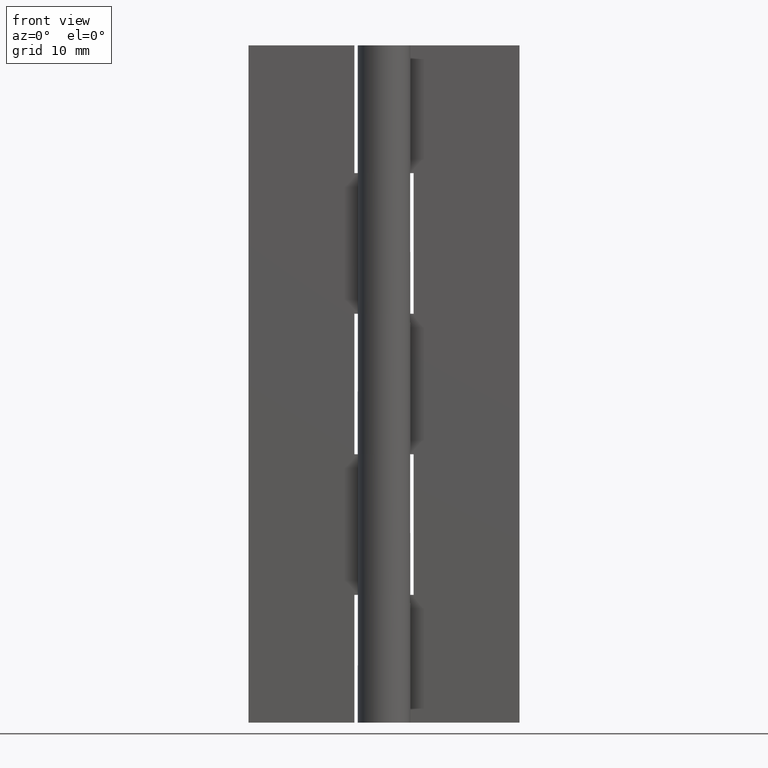
[diagram: clean part render]
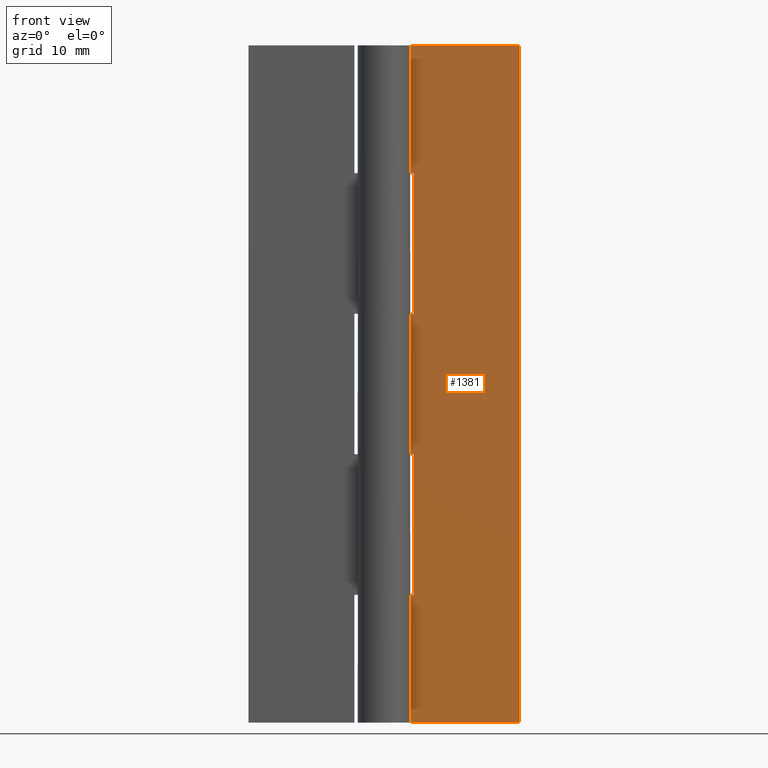
[diagram: same view with one face highlighted and labeled with its STEP entity id]
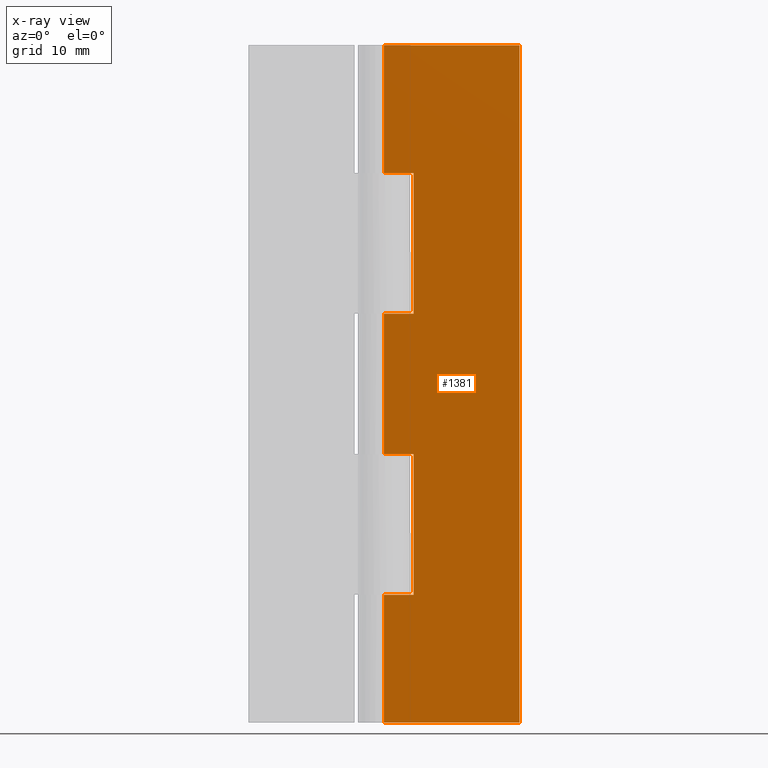
[diagram: x-ray of the same camera — body ghosted, the highlighted face saturated]
A machine part, front view. The second image highlights one B-rep face of the part: STEP entity #1381.
The next image is the same camera in x-ray: the body ghosted, the highlighted face saturated — about 0% of this face is hidden behind the body in this view.
In plain terms, the highlighted face is a freeform B-spline surface patch.
Its self-contained STEP definition (entity closure, byte-faithful):
#803=CARTESIAN_POINT('',(3.499999999999901,1.499999999999946,31.699997000000199));
#804=VERTEX_POINT('',#803);
#810=CARTESIAN_POINT('',(0.0,1.500000000000000,31.699997000000149));
#811=VERTEX_POINT('',#810);
#812=CARTESIAN_POINT('',(3.499999999999901,1.499999999999946,31.699997000000199));
#813=CARTESIAN_POINT('',(0.0,1.500000000000000,31.699997000000149));
#814=QUASI_UNIFORM_CURVE('',1,(#812,#813),.UNSPECIFIED.,.F.,.U.);
#815=EDGE_CURVE('',#804,#811,#814,.T.);
#851=CARTESIAN_POINT('',(3.499999999999901,1.499999999999946,15.100006000000100));
#852=VERTEX_POINT('',#851);
#853=CARTESIAN_POINT('',(3.499999999999901,1.499999999999946,15.100006000000100));
#854=CARTESIAN_POINT('',(3.499999999999901,1.499999999999946,31.699997000000199));
#855=QUASI_UNIFORM_CURVE('',1,(#853,#854),.UNSPECIFIED.,.F.,.U.);
#856=EDGE_CURVE('',#852,#804,#855,.T.);
#909=CARTESIAN_POINT('',(0.0,1.500000000000000,15.100006000000050));
#910=VERTEX_POINT('',#909);
#930=CARTESIAN_POINT('',(0.0,1.500000000000000,15.100006000000050));
#931=CARTESIAN_POINT('',(3.499999999999901,1.499999999999946,15.100006000000100));
#932=QUASI_UNIFORM_CURVE('',1,(#930,#931),.UNSPECIFIED.,.F.,.U.);
#933=EDGE_CURVE('',#910,#852,#932,.T.);
#986=CARTESIAN_POINT('',(0.0,1.500000000000000,48.300002999999798));
#987=VERTEX_POINT('',#986);
#1007=CARTESIAN_POINT('',(3.499999999999901,1.499999999999946,48.300002999999798));
#1008=VERTEX_POINT('',#1007);
#1009=CARTESIAN_POINT('',(0.0,1.500000000000000,48.300002999999798));
#1010=CARTESIAN_POINT('',(3.499999999999901,1.499999999999946,48.300002999999798));
#1011=QUASI_UNIFORM_CURVE('',1,(#1009,#1010),.UNSPECIFIED.,.F.,.U.);
#1012=EDGE_CURVE('',#987,#1008,#1011,.T.);
#1041=CARTESIAN_POINT('',(3.499999999999901,1.499999999999946,64.899993999999893));
#1042=VERTEX_POINT('',#1041);
#1043=CARTESIAN_POINT('',(3.499999999999901,1.499999999999946,48.300002999999798));
#1044=CARTESIAN_POINT('',(3.499999999999901,1.499999999999946,64.899993999999893));
#1045=QUASI_UNIFORM_CURVE('',1,(#1043,#1044),.UNSPECIFIED.,.F.,.U.);
#1046=EDGE_CURVE('',#1008,#1042,#1045,.T.);
#1105=CARTESIAN_POINT('',(0.0,1.500000000000000,64.899993999999893));
#1106=VERTEX_POINT('',#1105);
#1107=CARTESIAN_POINT('',(3.499999999999901,1.499999999999946,64.899993999999893));
#1108=CARTESIAN_POINT('',(0.0,1.500000000000000,64.899993999999893));
#1109=QUASI_UNIFORM_CURVE('',1,(#1107,#1108),.UNSPECIFIED.,.F.,.U.);
#1110=EDGE_CURVE('',#1042,#1106,#1109,.T.);
#1176=CARTESIAN_POINT('',(16.0,1.500000000000000,0.0));
#1177=VERTEX_POINT('',#1176);
#1183=CARTESIAN_POINT('',(0.0,1.500000000000000,0.0));
#1184=VERTEX_POINT('',#1183);
#1185=CARTESIAN_POINT('',(16.0,1.500000000000000,0.0));
#1186=CARTESIAN_POINT('',(0.0,1.500000000000000,0.0));
#1187=QUASI_UNIFORM_CURVE('',1,(#1185,#1186),.UNSPECIFIED.,.F.,.U.);
#1188=EDGE_CURVE('',#1177,#1184,#1187,.T.);
#1254=CARTESIAN_POINT('',(0.0,1.500000000000000,80.0));
#1255=VERTEX_POINT('',#1254);
#1275=CARTESIAN_POINT('',(16.0,1.500000000000000,80.0));
#1276=VERTEX_POINT('',#1275);
#1277=CARTESIAN_POINT('',(16.0,1.500000000000000,80.0));
#1278=CARTESIAN_POINT('',(0.0,1.500000000000000,80.0));
#1279=QUASI_UNIFORM_CURVE('',1,(#1277,#1278),.UNSPECIFIED.,.F.,.U.);
#1280=EDGE_CURVE('',#1276,#1255,#1279,.T.);
#1341=CARTESIAN_POINT('',(0.0,1.500000000000000,48.300002999999798));
#1342=CARTESIAN_POINT('',(0.0,1.500000000000000,31.699997000000149));
#1343=QUASI_UNIFORM_CURVE('',1,(#1341,#1342),.UNSPECIFIED.,.F.,.U.);
#1344=EDGE_CURVE('',#987,#811,#1343,.T.);
#1350=CARTESIAN_POINT('',(-0.799199968988895,1.500000000000000,83.995999844944478));
#1351=CARTESIAN_POINT('',(-0.799199968988895,1.500000000000000,-3.996001990711689));
#1352=CARTESIAN_POINT('',(16.799200398142339,1.500000000000000,83.995999844944478));
#1353=CARTESIAN_POINT('',(16.799200398142339,1.500000000000000,-3.996001990711689));
#1354=B_SPLINE_SURFACE_WITH_KNOTS('',1,1,((#1350,#1352),(#1351,#1353)),.UNSPECIFIED.,.F.,.F.,.U.,(2,2),(2,2),(0.0,87.992001835656168),(0.0,17.598400367131230),.UNSPECIFIED.);
#1355=ORIENTED_EDGE('',*,*,#933,.F.);
#1356=CARTESIAN_POINT('',(0.0,1.500000000000000,15.100006000000050));
#1357=CARTESIAN_POINT('',(0.0,1.500000000000000,0.0));
#1358=QUASI_UNIFORM_CURVE('',1,(#1356,#1357),.UNSPECIFIED.,.F.,.U.);
#1359=EDGE_CURVE('',#910,#1184,#1358,.T.);
#1360=ORIENTED_EDGE('',*,*,#1359,.T.);
#1361=ORIENTED_EDGE('',*,*,#1188,.F.);
#1362=CARTESIAN_POINT('',(16.0,1.500000000000000,80.0));
#1363=CARTESIAN_POINT('',(16.0,1.500000000000000,0.0));
#1364=QUASI_UNIFORM_CURVE('',1,(#1362,#1363),.UNSPECIFIED.,.F.,.U.);
#1365=EDGE_CURVE('',#1276,#1177,#1364,.T.);
#1366=ORIENTED_EDGE('',*,*,#1365,.F.);
#1367=ORIENTED_EDGE('',*,*,#1280,.T.);
#1368=CARTESIAN_POINT('',(0.0,1.500000000000000,80.0));
#1369=CARTESIAN_POINT('',(0.0,1.500000000000000,64.899993999999893));
#1370=QUASI_UNIFORM_CURVE('',1,(#1368,#1369),.UNSPECIFIED.,.F.,.U.);
#1371=EDGE_CURVE('',#1255,#1106,#1370,.T.);
#1372=ORIENTED_EDGE('',*,*,#1371,.T.);
#1373=ORIENTED_EDGE('',*,*,#1110,.F.);
#1374=ORIENTED_EDGE('',*,*,#1046,.F.);
#1375=ORIENTED_EDGE('',*,*,#1012,.F.);
#1376=ORIENTED_EDGE('',*,*,#1344,.T.);
#1377=ORIENTED_EDGE('',*,*,#815,.F.);
#1378=ORIENTED_EDGE('',*,*,#856,.F.);
#1379=EDGE_LOOP('',(#1355,#1360,#1361,#1366,#1367,#1372,#1373,#1374,#1375,#1376,#1377,#1378));
#1380=FACE_OUTER_BOUND('',#1379,.T.);
#1381=ADVANCED_FACE('',(#1380),#1354,.T.);